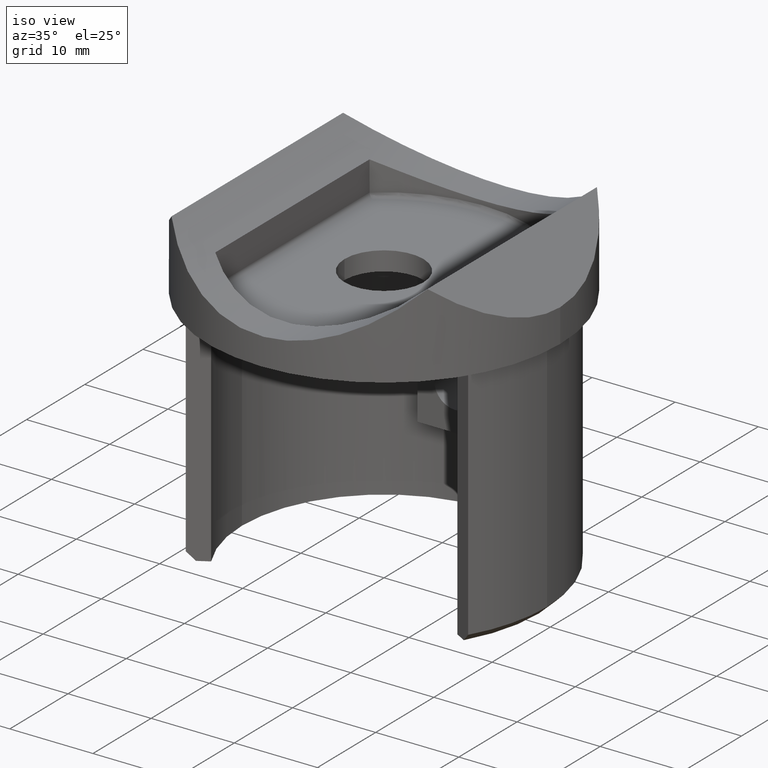
[diagram: clean part render]
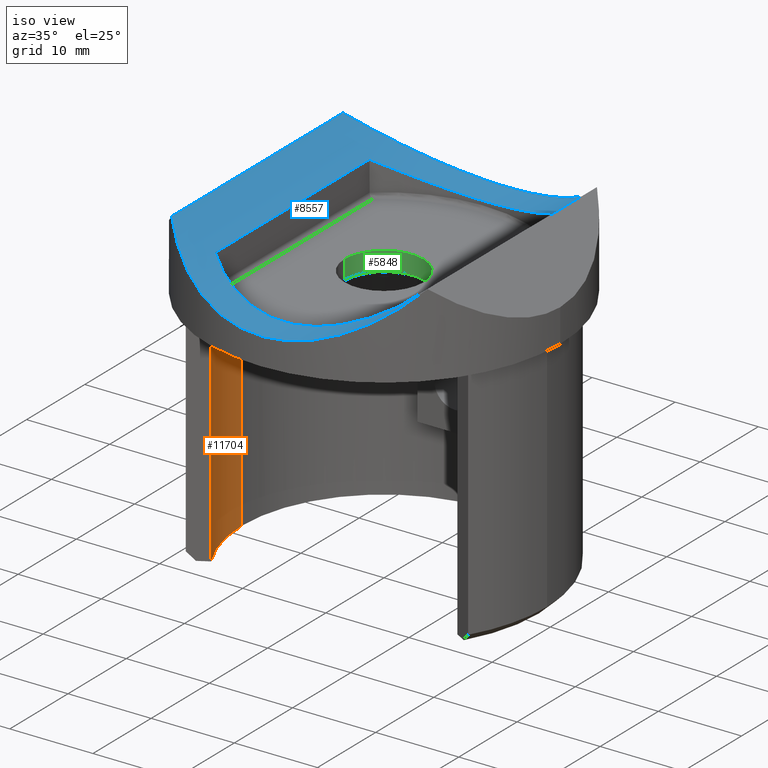
[diagram: same view with three faces highlighted in distinct colors, each labeled with its STEP entity id]
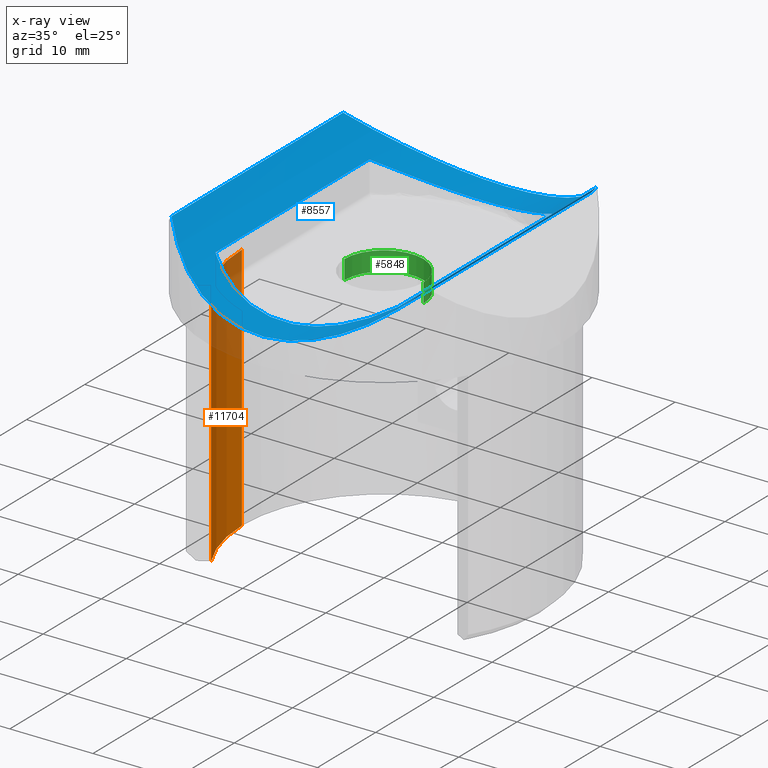
[diagram: x-ray of the same camera — body ghosted, the three highlighted faces saturated]
A machine part, iso view with three faces highlighted in distinct colors.
The next image is the same camera in x-ray (body ghosted, the three faces saturated) — at least one of them is partly hidden behind the body in this view.
Their STEP definitions:

[orange] entity #11704 — the highlighted cylindrical surface (partial cylindrical patch) has radius 17.1 mm, axis along (-0, -0, 1).
#19 = EDGE_CURVE ( 'NONE', #8911, #11979, #4296, .T. ) ;
#852 = CARTESIAN_POINT ( 'NONE',  ( -14.80903440471392329, -8.549999999999968736, -30.00000000000000000 ) ) ;
#1687 = VECTOR ( 'NONE', #6811, 1000.000000000000000 ) ;
#2345 = ORIENTED_EDGE ( 'NONE', *, *, #19, .F. ) ;
#2481 = AXIS2_PLACEMENT_3D ( 'NONE', #4000, #10120, #13671 ) ;
#3005 = CARTESIAN_POINT ( 'NONE',  ( -17.10000000000000497, 2.094146026541974426E-15, -30.00000000000000000 ) ) ;
#3399 = AXIS2_PLACEMENT_3D ( 'NONE', #3489, #11903, #10672 ) ;
#3465 = DIRECTION ( 'NONE',  ( -0.000000000000000000, -0.000000000000000000, 1.000000000000000000 ) ) ;
#3489 = CARTESIAN_POINT ( 'NONE',  ( 0.000000000000000000, 0.000000000000000000, 0.000000000000000000 ) ) ;
#3984 = ORIENTED_EDGE ( 'NONE', *, *, #13250, .F. ) ;
#4000 = CARTESIAN_POINT ( 'NONE',  ( 0.000000000000000000, 0.000000000000000000, -30.00000000000000000 ) ) ;
#4296 = LINE ( 'NONE', #4796, #9962 ) ;
#4796 = CARTESIAN_POINT ( 'NONE',  ( -14.80903440471392329, -8.549999999999968736, -30.00000000000000000 ) ) ;
#4950 = EDGE_CURVE ( 'NONE', #12888, #11979, #7963, .T. ) ;
#5301 = ORIENTED_EDGE ( 'NONE', *, *, #12267, .T. ) ;
#6459 = DIRECTION ( 'NONE',  ( -0.000000000000000000, -0.000000000000000000, 1.000000000000000000 ) ) ;
#6811 = DIRECTION ( 'NONE',  ( -0.000000000000000000, -0.000000000000000000, 1.000000000000000000 ) ) ;
#7506 = CARTESIAN_POINT ( 'NONE',  ( 0.000000000000000000, 0.000000000000000000, -30.00000000000000000 ) ) ;
#7963 = CIRCLE ( 'NONE', #3399, 17.10000000000000497 ) ;
#8647 = VERTEX_POINT ( 'NONE', #14497 ) ;
#8911 = VERTEX_POINT ( 'NONE', #852 ) ;
#9091 = LINE ( 'NONE', #3005, #1687 ) ;
#9131 = CARTESIAN_POINT ( 'NONE',  ( -17.10000000000000497, 2.094146026541974426E-15, 0.000000000000000000 ) ) ;
#9295 = CYLINDRICAL_SURFACE ( 'NONE', #2481, 17.10000000000000497 ) ;
#9643 = AXIS2_PLACEMENT_3D ( 'NONE', #7506, #6459, #13658 ) ;
#9962 = VECTOR ( 'NONE', #3465, 1000.000000000000000 ) ;
#10120 = DIRECTION ( 'NONE',  ( -0.000000000000000000, -0.000000000000000000, 1.000000000000000000 ) ) ;
#10610 = FACE_OUTER_BOUND ( 'NONE', #11054, .T. ) ;
#10672 = DIRECTION ( 'NONE',  ( -1.000000000000000000, 0.000000000000000000, 0.000000000000000000 ) ) ;
#10838 = CARTESIAN_POINT ( 'NONE',  ( -14.80903440471392329, -8.549999999999956302, 0.000000000000000000 ) ) ;
#11054 = EDGE_LOOP ( 'NONE', ( #3984, #5301, #12354, #2345 ) ) ;
#11704 = ADVANCED_FACE ( 'NONE', ( #10610 ), #9295, .F. ) ;
#11903 = DIRECTION ( 'NONE',  ( -0.000000000000000000, -0.000000000000000000, 1.000000000000000000 ) ) ;
#11979 = VERTEX_POINT ( 'NONE', #10838 ) ;
#12267 = EDGE_CURVE ( 'NONE', #8647, #12888, #9091, .T. ) ;
#12354 = ORIENTED_EDGE ( 'NONE', *, *, #4950, .T. ) ;
#12888 = VERTEX_POINT ( 'NONE', #9131 ) ;
#13250 = EDGE_CURVE ( 'NONE', #8647, #8911, #15306, .T. ) ;
#13658 = DIRECTION ( 'NONE',  ( -1.000000000000000000, 0.000000000000000000, 0.000000000000000000 ) ) ;
#13671 = DIRECTION ( 'NONE',  ( 1.000000000000000000, 0.000000000000000000, 0.000000000000000000 ) ) ;
#14497 = CARTESIAN_POINT ( 'NONE',  ( -17.10000000000000497, 2.094146026541974426E-15, -30.00000000000000000 ) ) ;
#15306 = CIRCLE ( 'NONE', #9643, 17.10000000000000497 ) ;

[blue] entity #8557 — the highlighted cylindrical surface (partial cylindrical patch) has radius 21.2 mm, axis along (-0, 1, -0).
#232 = LINE ( 'NONE', #2848, #11791 ) ;
#314 = EDGE_CURVE ( 'NONE', #8746, #1468, #1054, .T. ) ;
#380 = CARTESIAN_POINT ( 'NONE',  ( -15.24015849593285132, -21.19999999999999929, 9.763054284593236432 ) ) ;
#430 = CARTESIAN_POINT ( 'NONE',  ( 4.985578885751638545, 16.46168581148034704, 3.888495098163960328 ) ) ;
#434 = DIRECTION ( 'NONE',  ( -0.000000000000000000, 1.000000000000000000, -0.000000000000000000 ) ) ;
#563 = CARTESIAN_POINT ( 'NONE',  ( -2.080425407628057499, -17.10724782459177362, 3.377579991258648828 ) ) ;
#586 = CARTESIAN_POINT ( 'NONE',  ( -6.284292901781724616, -23.99862135423620657, 0.5013786457637916527 ) ) ;
#618 = CARTESIAN_POINT ( 'NONE',  ( -4.099263893425467487, -16.71796052515093933, 3.694097214333067924 ) ) ;
#867 = VECTOR ( 'NONE', #5732, 1000.000000000000000 ) ;
#1054 = LINE ( 'NONE', #380, #14873 ) ;
#1306 = CARTESIAN_POINT ( 'NONE',  ( 15.43242468031816372, -21.19999999999999929, 9.964516915963653076 ) ) ;
#1468 = VERTEX_POINT ( 'NONE', #9252 ) ;
#1585 = CARTESIAN_POINT ( 'NONE',  ( -11.02221127602910400, 13.23932022424111921, 6.390586464863727834 ) ) ;
#1604 = CARTESIAN_POINT ( 'NONE',  ( 10.93859494389446319, -13.23932022424111921, 6.339957581178216728 ) ) ;
#1659 = CARTESIAN_POINT ( 'NONE',  ( -6.483493544200479519, -15.95050621828984383, 4.309888421085534382 ) ) ;
#1680 = CARTESIAN_POINT ( 'NONE',  ( 9.433827295682094771, 14.39116888164691588, 5.492615892443847514 ) ) ;
#1738 = CARTESIAN_POINT ( 'NONE',  ( -9.521418747987594244, 14.38027970902904684, 5.536653844474186847 ) ) ;
#1739 = CARTESIAN_POINT ( 'NONE',  ( 6.598990985126360620, -23.91400180140512077, 0.5859981985948791161 ) ) ;
#1768 = CARTESIAN_POINT ( 'NONE',  ( 8.193878373826112949, -15.11296628358963368, 4.942229555545027964 ) ) ;
#1817 = CARTESIAN_POINT ( 'NONE',  ( 10.21313630046073762, -13.84334500022784198, 5.902981826053118830 ) ) ;
#1942 = CARTESIAN_POINT ( 'NONE',  ( 15.43242468031816372, -14.53548308403634870, 9.964516915963653076 ) ) ;
#2097 = EDGE_CURVE ( 'NONE', #13621, #8746, #3341, .T. ) ;
#2302 = EDGE_CURVE ( 'NONE', #14164, #13814, #9823, .T. ) ;
#2689 = FACE_BOUND ( 'NONE', #7385, .T. ) ;
#2785 = VERTEX_POINT ( 'NONE', #15677 ) ;
#2842 = CARTESIAN_POINT ( 'NONE',  ( -10.29622020724747422, 13.83899932251253517, 5.948715339159099891 ) ) ;
#2848 = CARTESIAN_POINT ( 'NONE',  ( 10.93859494389446319, -21.19999999999999929, 6.339957581178216728 ) ) ;
#2873 = CARTESIAN_POINT ( 'NONE',  ( -6.939137414736782361, -15.75874737049744923, 4.462176691963337660 ) ) ;
#2948 = CARTESIAN_POINT ( 'NONE',  ( 10.93859494389446319, 13.23932022424111921, 6.339957581178209622 ) ) ;
#2985 = CARTESIAN_POINT ( 'NONE',  ( 0.4870126176599132717, -17.20020215624517945, 3.299326970736026876 ) ) ;
#3021 = VERTEX_POINT ( 'NONE', #1585 ) ;
#3041 = CARTESIAN_POINT ( 'NONE',  ( -7.830360187111931936, -15.33825104905253944, 4.793365322186803112 ) ) ;
#3069 = CARTESIAN_POINT ( 'NONE',  ( 15.43242468031816372, 14.53548308403634515, 9.964516915963653076 ) ) ;
#3341 =( BOUNDED_CURVE ( )  B_SPLINE_CURVE ( 3, ( #1942, #1739, #586, #12654 ),
 .UNSPECIFIED., .F., .F. ) 
 B_SPLINE_CURVE_WITH_KNOTS ( ( 4, 4 ),
 ( 5.467866005553031705, 7.085368464830217761 ),
 .UNSPECIFIED. ) 
 CURVE ( )  GEOMETRIC_REPRESENTATION_ITEM ( )  RATIONAL_B_SPLINE_CURVE ( ( 1.000000000000000000, 0.7936015756412416744, 0.7936015756412416744, 1.000000000000000000 ) ) 
 REPRESENTATION_ITEM ( '' )  );
#4070 = CARTESIAN_POINT ( 'NONE',  ( 5.014250589633086008, -16.47546391252256726, 3.878486627016807020 ) ) ;
#4090 = CARTESIAN_POINT ( 'NONE',  ( 10.21206945803562327, 13.84423326486245642, 5.902339219781151947 ) ) ;
#4249 = CARTESIAN_POINT ( 'NONE',  ( -8.278082832356204790, 15.10248991866735047, 4.977709593445347913 ) ) ;
#4364 = CARTESIAN_POINT ( 'NONE',  ( -6.284292901781730833, 23.99862135423620657, 0.5013786457637934291 ) ) ;
#4442 = CYLINDRICAL_SURFACE ( 'NONE', #14555, 21.20000000000000284 ) ;
#4736 = ORIENTED_EDGE ( 'NONE', *, *, #9143, .T. ) ;
#4799 = VECTOR ( 'NONE', #14695, 1000.000000000000000 ) ;
#4991 = B_SPLINE_CURVE_WITH_KNOTS ( 'NONE', 3,
 ( #5455, #2842, #1738, #4249, #12599, #8952, #7654, #13864, #11256, #5304, #11313, #12711, #7826, #6552, #6407, #15025, #12496, #7608, #13706, #430, #6504, #10211, #8843, #8897, #13756, #1680, #4090, #2948 ),
 .UNSPECIFIED., .F., .F.,
 ( 4, 2, 2, 2, 2, 2, 2, 2, 2, 2, 2, 2, 2, 4 ),
 ( 4.249187360970369464E-18, 0.003085046468172790175, 0.004627569702259182877, 0.006170092936345576012, 0.009255139404518364019, 0.01079766263860475715, 0.01156892425564795372, 0.01234018587269115029, 0.01542523234086393483, 0.01696775557495032796, 0.01851027880903672110, 0.02005280204312311076, 0.02159532527720950390, 0.02468037174538229017 ),
 .UNSPECIFIED. ) ;
#5304 = CARTESIAN_POINT ( 'NONE',  ( -2.641128602530420366, 17.00708510998432033, 3.459115935445084222 ) ) ;
#5339 = CARTESIAN_POINT ( 'NONE',  ( -5.074707018494946098, -16.45003269923734734, 3.910271884480774229 ) ) ;
#5435 = CARTESIAN_POINT ( 'NONE',  ( -9.517314427575897184, -14.38345149671085288, 5.534260519392319111 ) ) ;
#5455 = CARTESIAN_POINT ( 'NONE',  ( -11.02221127602910400, 13.23932022424111921, 6.390586464863727834 ) ) ;
#5732 = DIRECTION ( 'NONE',  ( -0.000000000000000000, 1.000000000000000000, -0.000000000000000000 ) ) ;
#5975 = VERTEX_POINT ( 'NONE', #13951 ) ;
#6407 = CARTESIAN_POINT ( 'NONE',  ( -0.3226274819516581349, 17.19930090623415353, 3.300886010767401402 ) ) ;
#6504 = CARTESIAN_POINT ( 'NONE',  ( 5.462941503322560344, 16.30820394724938538, 4.010184051950042239 ) ) ;
#6552 = CARTESIAN_POINT ( 'NONE',  ( -0.5812016687166617901, 17.19285640187713327, 3.306380280080638112 ) ) ;
#6589 = CARTESIAN_POINT ( 'NONE',  ( -11.02221127602909334, -13.23932022424112276, 6.390586464863720728 ) ) ;
#7385 = EDGE_LOOP ( 'NONE', ( #12110, #9210, #11182, #12663 ) ) ;
#7476 = EDGE_CURVE ( 'NONE', #1468, #2785, #10618, .T. ) ;
#7608 = CARTESIAN_POINT ( 'NONE',  ( 3.504721214670473817, 16.84209009264737489, 3.585467194797847590 ) ) ;
#7618 = DIRECTION ( 'NONE',  ( 0.000000000000000000, 0.000000000000000000, 1.000000000000000000 ) ) ;
#7638 = CARTESIAN_POINT ( 'NONE',  ( 6.878294834695526383, -15.75978454920606886, 4.441275977661314656 ) ) ;
#7654 = CARTESIAN_POINT ( 'NONE',  ( -6.503979480684082048, 15.94226171968161232, 4.316447152259227593 ) ) ;
#7693 = CARTESIAN_POINT ( 'NONE',  ( -5.551276438203888830, -16.29614629020136718, 4.033939704639107227 ) ) ;
#7796 = CARTESIAN_POINT ( 'NONE',  ( 15.43242468031816372, -14.53548308403634870, 9.964516915963653076 ) ) ;
#7826 = CARTESIAN_POINT ( 'NONE',  ( -1.099685703377666357, 17.16815789658756231, 3.326951009217859134 ) ) ;
#8557 = ADVANCED_FACE ( 'NONE', ( #2689, #15216 ), #4442, .F. ) ;
#8746 = VERTEX_POINT ( 'NONE', #8962 ) ;
#8843 = CARTESIAN_POINT ( 'NONE',  ( 6.852346324274388500, 15.77122502030164242, 4.432344393494350498 ) ) ;
#8897 = CARTESIAN_POINT ( 'NONE',  ( 7.743937128921192681, 15.35033854350163196, 4.759258133686310011 ) ) ;
#8952 = CARTESIAN_POINT ( 'NONE',  ( -6.964372523113567581, 15.74759917512469443, 4.470998829359579929 ) ) ;
#8962 = CARTESIAN_POINT ( 'NONE',  ( -15.24015849593285132, -14.73694571540676712, 9.763054284593236432 ) ) ;
#8982 = CARTESIAN_POINT ( 'NONE',  ( 4.048174913115536455, -16.74188391205354876, 3.665611714116476794 ) ) ;
#9088 = CARTESIAN_POINT ( 'NONE',  ( -1.059421778029399075, -17.19959166645609017, 3.301403390075074551 ) ) ;
#9143 = EDGE_CURVE ( 'NONE', #13621, #2785, #11202, .T. ) ;
#9210 = ORIENTED_EDGE ( 'NONE', *, *, #2302, .T. ) ;
#9252 = CARTESIAN_POINT ( 'NONE',  ( -15.24015849593285132, 14.73694571540676002, 9.763054284593236432 ) ) ;
#9448 = EDGE_CURVE ( 'NONE', #5975, #14164, #232, .T. ) ;
#9823 = B_SPLINE_CURVE_WITH_KNOTS ( 'NONE', 3,
 ( #1604, #1817, #15111, #1768, #10247, #7638, #13940, #4070, #8982, #13895, #10191, #15007, #2985, #9088, #563, #14953, #618, #5339, #7693, #1659, #2873, #3041, #13844, #5435, #11447, #6589 ),
 .UNSPECIFIED., .F., .F.,
 ( 4, 2, 2, 2, 2, 2, 2, 2, 2, 2, 2, 2, 4 ),
 ( 9.341771812940338307E-18, 0.003085185838566483450, 0.004627778757849722140, 0.006170371677132959962, 0.009255557515699430401, 0.01079815043498266562, 0.01234074335426590084, 0.01542592919283237128, 0.01696852211211560824, 0.01851111503139884693, 0.02005370795068208561, 0.02159630086996532083, 0.02468148670853179474 ),
 .UNSPECIFIED. ) ;
#10157 = LINE ( 'NONE', #11816, #867 ) ;
#10191 = CARTESIAN_POINT ( 'NONE',  ( 2.041488403188461476, -17.08363468289708464, 3.392162017289074516 ) ) ;
#10211 = CARTESIAN_POINT ( 'NONE',  ( 6.396327227393838299, 15.96297620515263738, 4.282104821377010317 ) ) ;
#10247 = CARTESIAN_POINT ( 'NONE',  ( 7.765330953681642612, -15.33938614306288351, 4.767717202078722849 ) ) ;
#10334 = CARTESIAN_POINT ( 'NONE',  ( -11.02221127602909334, -13.23932022424112276, 6.390586464863720728 ) ) ;
#10344 = ORIENTED_EDGE ( 'NONE', *, *, #314, .F. ) ;
#10372 = CARTESIAN_POINT ( 'NONE',  ( -15.24015849593285132, 14.73694571540676002, 9.763054284593236432 ) ) ;
#10618 =( BOUNDED_CURVE ( )  B_SPLINE_CURVE ( 3, ( #10372, #4364, #15083, #3069 ),
 .UNSPECIFIED., .F., .F. ) 
 B_SPLINE_CURVE_WITH_KNOTS ( ( 4, 4 ),
 ( 5.481002149528954703, 7.098504608806140759 ),
 .UNSPECIFIED. ) 
 CURVE ( )  GEOMETRIC_REPRESENTATION_ITEM ( )  RATIONAL_B_SPLINE_CURVE ( ( 1.000000000000000000, 0.7936015756412416744, 0.7936015756412416744, 1.000000000000000000 ) ) 
 REPRESENTATION_ITEM ( '' )  );
#10684 = EDGE_CURVE ( 'NONE', #3021, #5975, #4991, .T. ) ;
#11182 = ORIENTED_EDGE ( 'NONE', *, *, #15507, .T. ) ;
#11202 = LINE ( 'NONE', #1306, #4799 ) ;
#11256 = CARTESIAN_POINT ( 'NONE',  ( -4.137472397177679895, 16.73166159697104050, 3.683209368032396736 ) ) ;
#11313 = CARTESIAN_POINT ( 'NONE',  ( -2.134129242745332888, 17.07772319548173101, 3.401348140648007501 ) ) ;
#11447 = CARTESIAN_POINT ( 'NONE',  ( -10.29523522581630779, -13.83981293138715252, 5.948115834740238306 ) ) ;
#11791 = VECTOR ( 'NONE', #13818, 1000.000000000000000 ) ;
#11816 = CARTESIAN_POINT ( 'NONE',  ( -11.02221127602909156, -21.20000000000000284, 6.390586464863720728 ) ) ;
#12085 = CARTESIAN_POINT ( 'NONE',  ( 10.93859494389446319, -13.23932022424111921, 6.339957581178216728 ) ) ;
#12110 = ORIENTED_EDGE ( 'NONE', *, *, #9448, .T. ) ;
#12447 = ORIENTED_EDGE ( 'NONE', *, *, #2097, .F. ) ;
#12496 = CARTESIAN_POINT ( 'NONE',  ( 1.988208857415124653, 17.11301733826974214, 3.368742617888322410 ) ) ;
#12599 = CARTESIAN_POINT ( 'NONE',  ( -7.850044384708389167, 15.32816599577426864, 4.801264616927236162 ) ) ;
#12654 = CARTESIAN_POINT ( 'NONE',  ( -15.24015849593285132, -14.73694571540676712, 9.763054284593236432 ) ) ;
#12663 = ORIENTED_EDGE ( 'NONE', *, *, #10684, .T. ) ;
#12711 = CARTESIAN_POINT ( 'NONE',  ( -1.360416428769516184, 17.14979915779760589, 3.342113252570487081 ) ) ;
#12988 = EDGE_LOOP ( 'NONE', ( #4736, #14007, #10344, #12447 ) ) ;
#13251 = DIRECTION ( 'NONE',  ( -0.000000000000000000, 1.000000000000000000, -0.000000000000000000 ) ) ;
#13621 = VERTEX_POINT ( 'NONE', #7796 ) ;
#13706 = CARTESIAN_POINT ( 'NONE',  ( 4.008077788113100226, 16.72839498449219420, 3.676324925967124901 ) ) ;
#13756 = CARTESIAN_POINT ( 'NONE',  ( 8.178856673167720359, 15.12127935216341079, 4.935855742353218112 ) ) ;
#13814 = VERTEX_POINT ( 'NONE', #10334 ) ;
#13818 = DIRECTION ( 'NONE',  ( 0.000000000000000000, -1.000000000000000000, 0.000000000000000000 ) ) ;
#13844 = CARTESIAN_POINT ( 'NONE',  ( -8.264194453404947183, -15.11015575969655522, 4.971745417825554902 ) ) ;
#13864 = CARTESIAN_POINT ( 'NONE',  ( -5.102325313637287252, 16.46386306435146452, 3.900085073849630657 ) ) ;
#13895 = CARTESIAN_POINT ( 'NONE',  ( 2.549398911937176049, -17.01420494716227694, 3.447792775308614388 ) ) ;
#13940 = CARTESIAN_POINT ( 'NONE',  ( 6.417164059263030573, -15.95459613921599029, 4.288681732048178930 ) ) ;
#13951 = CARTESIAN_POINT ( 'NONE',  ( 10.93859494389446319, 13.23932022424111921, 6.339957581178209622 ) ) ;
#14007 = ORIENTED_EDGE ( 'NONE', *, *, #7476, .F. ) ;
#14164 = VERTEX_POINT ( 'NONE', #12085 ) ;
#14555 = AXIS2_PLACEMENT_3D ( 'NONE', #14824, #13251, #7618 ) ;
#14695 = DIRECTION ( 'NONE',  ( -0.000000000000000000, 1.000000000000000000, -0.000000000000000000 ) ) ;
#14824 = CARTESIAN_POINT ( 'NONE',  ( 0.000000000000000000, -21.19999999999999929, 24.50000000000000000 ) ) ;
#14873 = VECTOR ( 'NONE', #434, 1000.000000000000000 ) ;
#14953 = CARTESIAN_POINT ( 'NONE',  ( -3.597263690063091435, -16.83250972442323601, 3.601174837571633702 ) ) ;
#15007 = CARTESIAN_POINT ( 'NONE',  ( 1.007833771475179718, -17.17700353721769346, 3.317630673274504893 ) ) ;
#15025 = CARTESIAN_POINT ( 'NONE',  ( 0.9669635464311491235, 17.20252721510936311, 3.296949742330048672 ) ) ;
#15083 = CARTESIAN_POINT ( 'NONE',  ( 6.598990985126357955, 23.91400180140513498, 0.5859981985948756744 ) ) ;
#15111 = CARTESIAN_POINT ( 'NONE',  ( 9.438264390785734648, -14.38771717155395180, 5.495177571420648555 ) ) ;
#15216 = FACE_OUTER_BOUND ( 'NONE', #12988, .T. ) ;
#15507 = EDGE_CURVE ( 'NONE', #13814, #3021, #10157, .T. ) ;
#15677 = CARTESIAN_POINT ( 'NONE',  ( 15.43242468031816372, 14.53548308403634515, 9.964516915963653076 ) ) ;

[green] entity #5848 — the highlighted cylindrical surface (partial cylindrical patch) has radius 4.75 mm, axis along (-0, -0, 1).
#159 = CIRCLE ( 'NONE', #12801, 4.750000000000000000 ) ;
#512 = ORIENTED_EDGE ( 'NONE', *, *, #617, .T. ) ;
#617 = EDGE_CURVE ( 'NONE', #10865, #2023, #9576, .T. ) ;
#1160 = AXIS2_PLACEMENT_3D ( 'NONE', #10302, #9205, #1727 ) ;
#1267 = CARTESIAN_POINT ( 'NONE',  ( 0.000000000000000000, 0.000000000000000000, 0.000000000000000000 ) ) ;
#1548 = CARTESIAN_POINT ( 'NONE',  ( -4.750000000000000000, 5.817072295949927426E-16, 2.299999999999999822 ) ) ;
#1727 = DIRECTION ( 'NONE',  ( 1.000000000000000000, 0.000000000000000000, 0.000000000000000000 ) ) ;
#1836 = DIRECTION ( 'NONE',  ( 1.000000000000000000, 0.000000000000000000, 0.000000000000000000 ) ) ;
#1940 = CARTESIAN_POINT ( 'NONE',  ( 0.000000000000000000, 0.000000000000000000, 2.299999999999999822 ) ) ;
#2023 = VERTEX_POINT ( 'NONE', #13757 ) ;
#2244 = VECTOR ( 'NONE', #15543, 1000.000000000000000 ) ;
#4276 = ORIENTED_EDGE ( 'NONE', *, *, #13982, .F. ) ;
#4366 = LINE ( 'NONE', #13025, #2244 ) ;
#5848 = ADVANCED_FACE ( 'NONE', ( #15323 ), #11149, .F. ) ;
#6109 = DIRECTION ( 'NONE',  ( -0.000000000000000000, -0.000000000000000000, 1.000000000000000000 ) ) ;
#7024 = CARTESIAN_POINT ( 'NONE',  ( 4.750000000000000000, 0.000000000000000000, 0.000000000000000000 ) ) ;
#8142 = CIRCLE ( 'NONE', #10237, 4.750000000000000000 ) ;
#9205 = DIRECTION ( 'NONE',  ( -0.000000000000000000, -0.000000000000000000, 1.000000000000000000 ) ) ;
#9245 = ORIENTED_EDGE ( 'NONE', *, *, #12366, .F. ) ;
#9576 = LINE ( 'NONE', #9612, #13550 ) ;
#9612 = CARTESIAN_POINT ( 'NONE',  ( 4.750000000000000000, 0.000000000000000000, 0.000000000000000000 ) ) ;
#10237 = AXIS2_PLACEMENT_3D ( 'NONE', #1940, #14015, #1836 ) ;
#10302 = CARTESIAN_POINT ( 'NONE',  ( 0.000000000000000000, 0.000000000000000000, 0.000000000000000000 ) ) ;
#10865 = VERTEX_POINT ( 'NONE', #7024 ) ;
#11149 = CYLINDRICAL_SURFACE ( 'NONE', #1160, 4.750000000000000000 ) ;
#11281 = EDGE_LOOP ( 'NONE', ( #9245, #4276, #512, #11726 ) ) ;
#11426 = VERTEX_POINT ( 'NONE', #13159 ) ;
#11726 = ORIENTED_EDGE ( 'NONE', *, *, #12275, .T. ) ;
#12032 = DIRECTION ( 'NONE',  ( 1.000000000000000000, 0.000000000000000000, 0.000000000000000000 ) ) ;
#12275 = EDGE_CURVE ( 'NONE', #2023, #13700, #8142, .T. ) ;
#12366 = EDGE_CURVE ( 'NONE', #11426, #13700, #4366, .T. ) ;
#12801 = AXIS2_PLACEMENT_3D ( 'NONE', #1267, #15671, #12032 ) ;
#13025 = CARTESIAN_POINT ( 'NONE',  ( -4.750000000000000000, 5.817072295949927426E-16, 0.000000000000000000 ) ) ;
#13159 = CARTESIAN_POINT ( 'NONE',  ( -4.750000000000000000, 5.817072295949927426E-16, 0.000000000000000000 ) ) ;
#13550 = VECTOR ( 'NONE', #6109, 1000.000000000000000 ) ;
#13700 = VERTEX_POINT ( 'NONE', #1548 ) ;
#13757 = CARTESIAN_POINT ( 'NONE',  ( 4.750000000000000000, 0.000000000000000000, 2.299999999999999822 ) ) ;
#13982 = EDGE_CURVE ( 'NONE', #10865, #11426, #159, .T. ) ;
#14015 = DIRECTION ( 'NONE',  ( 0.000000000000000000, 0.000000000000000000, 1.000000000000000000 ) ) ;
#15323 = FACE_OUTER_BOUND ( 'NONE', #11281, .T. ) ;
#15543 = DIRECTION ( 'NONE',  ( -0.000000000000000000, -0.000000000000000000, 1.000000000000000000 ) ) ;
#15671 = DIRECTION ( 'NONE',  ( 0.000000000000000000, 0.000000000000000000, 1.000000000000000000 ) ) ;